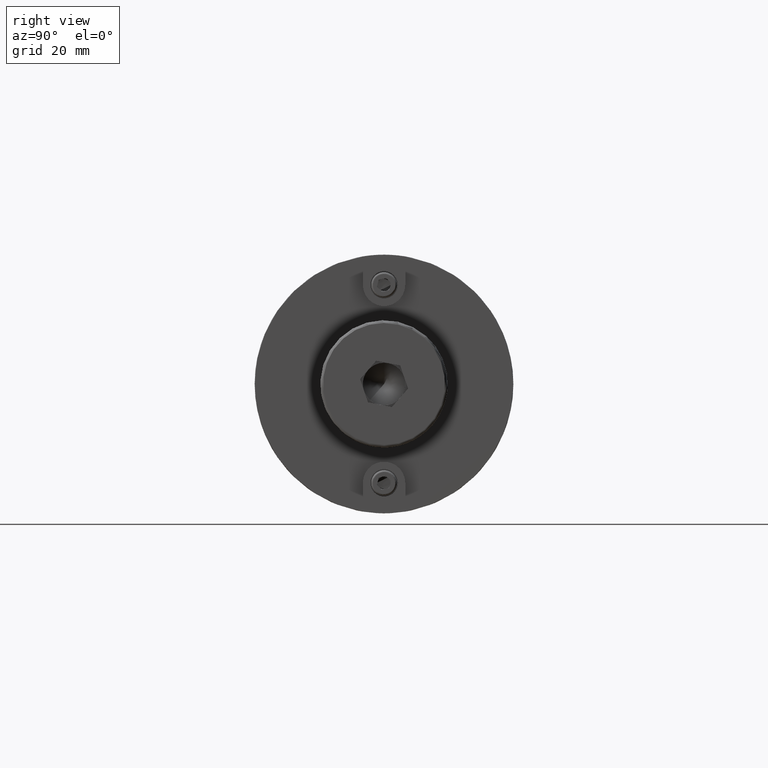
[diagram: clean part render]
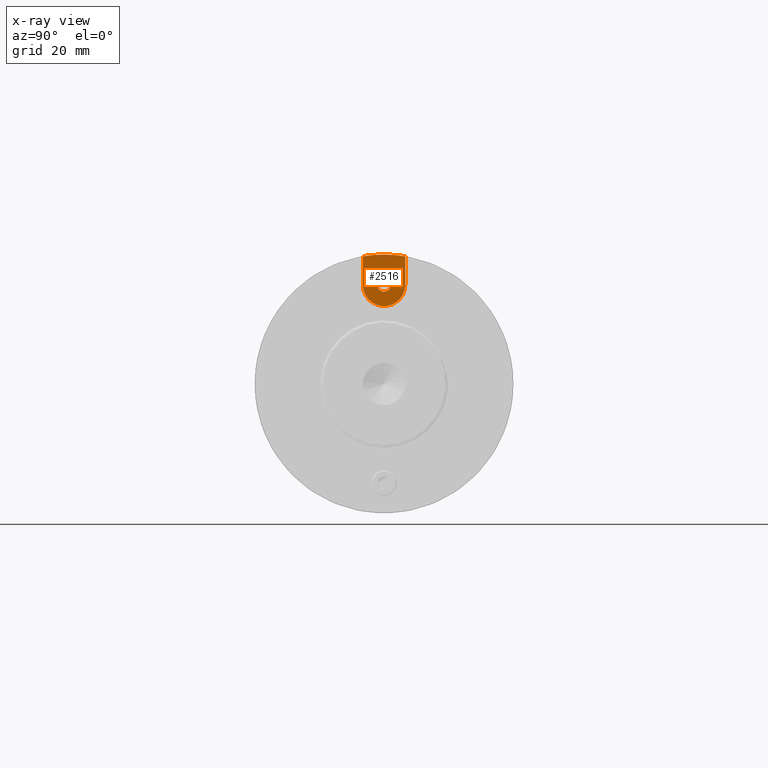
[diagram: x-ray — body ghosted, one internal face saturated and labeled with its STEP entity id]
A machine part, right view, then the same camera in x-ray: the body is ghosted and one INTERNAL B-rep face — a face not visible from any outside direction — is saturated and labeled: STEP entity #2516.
In plain terms, the highlighted planar face has unit normal (1, 0, 0).
Its self-contained STEP definition (entity closure, byte-faithful):
#546=FACE_BOUND('',#901,.T.);
#613=CIRCLE('',#2798,2.4892);
#615=CIRCLE('',#2802,7.935);
#616=CIRCLE('',#2804,48.425);
#617=CIRCLE('',#2805,48.425);
#773=FACE_OUTER_BOUND('',#900,.T.);
#900=EDGE_LOOP('',(#1854,#1855,#1856,#1857,#1858));
#901=EDGE_LOOP('',(#1859));
#1048=LINE('',#3950,#1185);
#1056=LINE('',#3971,#1193);
#1185=VECTOR('',#3137,10.);
#1193=VECTOR('',#3155,10.);
#1321=VERTEX_POINT('',#3946);
#1323=VERTEX_POINT('',#3949);
#1327=VERTEX_POINT('',#3960);
#1329=VERTEX_POINT('',#3965);
#1331=VERTEX_POINT('',#3969);
#1332=VERTEX_POINT('',#3976);
#1526=EDGE_CURVE('',#1321,#1323,#1048,.T.);
#1531=EDGE_CURVE('',#1327,#1327,#613,.T.);
#1536=EDGE_CURVE('',#1331,#1329,#1056,.T.);
#1538=EDGE_CURVE('',#1323,#1331,#615,.T.);
#1539=EDGE_CURVE('',#1329,#1332,#616,.T.);
#1540=EDGE_CURVE('',#1332,#1321,#617,.T.);
#1854=ORIENTED_EDGE('',*,*,#1539,.F.);
#1855=ORIENTED_EDGE('',*,*,#1536,.F.);
#1856=ORIENTED_EDGE('',*,*,#1538,.F.);
#1857=ORIENTED_EDGE('',*,*,#1526,.F.);
#1858=ORIENTED_EDGE('',*,*,#1540,.F.);
#1859=ORIENTED_EDGE('',*,*,#1531,.F.);
#2457=PLANE('',#2803);
#2516=ADVANCED_FACE('',(#773,#546),#2457,.T.);
#2798=AXIS2_PLACEMENT_3D('',#3961,#3147,#3148);
#2802=AXIS2_PLACEMENT_3D('',#3974,#3160,#3161);
#2803=AXIS2_PLACEMENT_3D('',#3975,#3162,#3163);
#2804=AXIS2_PLACEMENT_3D('',#3977,#3164,#3165);
#2805=AXIS2_PLACEMENT_3D('',#3978,#3166,#3167);
#3137=DIRECTION('',(0.,2.16741865953018E-16,-1.));
#3147=DIRECTION('center_axis',(1.,0.,0.));
#3148=DIRECTION('ref_axis',(0.,1.22464679914735E-16,1.));
#3155=DIRECTION('',(0.,4.61671225782489E-16,1.));
#3160=DIRECTION('center_axis',(-1.,0.,0.));
#3161=DIRECTION('ref_axis',(0.,-1.,1.22464679914735E-16));
#3162=DIRECTION('center_axis',(1.,0.,0.));
#3163=DIRECTION('ref_axis',(0.,1.22464679914735E-16,1.));
#3164=DIRECTION('center_axis',(-1.,0.,0.));
#3165=DIRECTION('ref_axis',(0.,0.,-1.));
#3166=DIRECTION('center_axis',(-1.,0.,0.));
#3167=DIRECTION('ref_axis',(0.,0.,-1.));
#3946=CARTESIAN_POINT('',(111.818,7.935,47.770455304508));
#3949=CARTESIAN_POINT('',(111.818,7.93500000000001,37.06));
#3950=CARTESIAN_POINT('',(111.818,7.93500000000001,37.06));
#3960=CARTESIAN_POINT('',(111.818,4.53854103764009E-15,34.5708));
#3961=CARTESIAN_POINT('Origin',(111.818,4.53854103764009E-15,37.06));
#3965=CARTESIAN_POINT('',(111.818,-7.93499999999999,47.770455304508));
#3969=CARTESIAN_POINT('',(111.818,-7.935,37.06));
#3971=CARTESIAN_POINT('',(111.818,-7.93499999999999,53.425));
#3974=CARTESIAN_POINT('Origin',(111.818,4.53854103764009E-15,37.06));
#3975=CARTESIAN_POINT('Origin',(111.818,5.0547296634807E-15,41.275));
#3976=CARTESIAN_POINT('',(111.818,-5.93035212487106E-15,48.425));
#3977=CARTESIAN_POINT('Origin',(111.818,0.,0.));
#3978=CARTESIAN_POINT('Origin',(111.818,0.,0.));